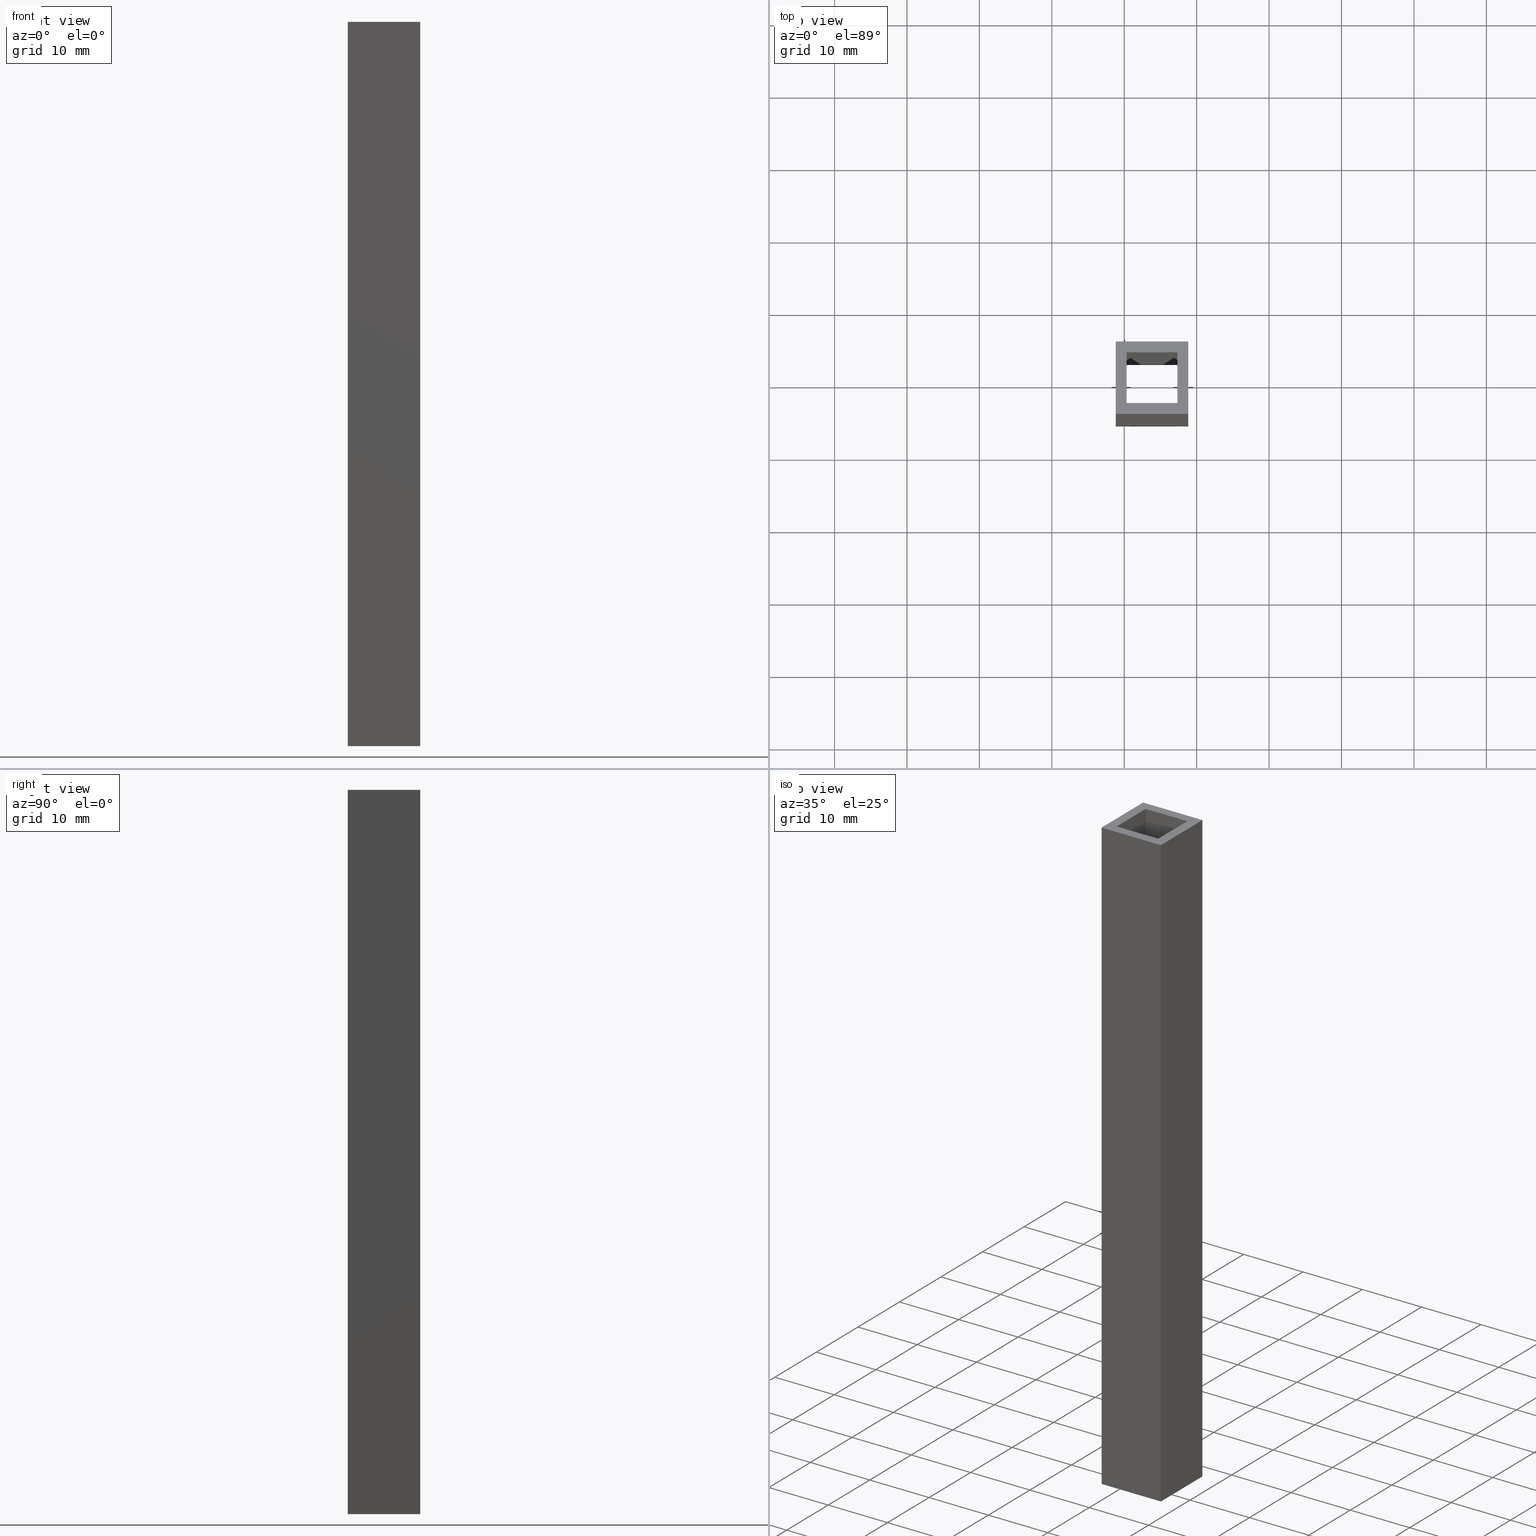
[diagram: canonical four-view strip — front | top / right | iso, engineering-drawing reading convention]
A machine part, canonical four-view strip (front | top / right | iso — engineering-drawing reading convention). The complete STEP part file that produces these views, byte-faithful:
ISO-10303-21;
HEADER;
/* Generated by software containing ST-Developer
 * from STEP Tools, Inc. (www.steptools.com) 
 */

FILE_DESCRIPTION(
/* description */ ('TUBOLARE ALLUM. 10X10X1,5'),
/* implementation_level */ '2;1');

FILE_NAME(
/* name */ 
'Q:\\Catalogo\\2_Accessori Dierre\\Per Download Web e catalogo cartace
o\\CATALOGO ACCESSORI PER RIPARI\\PAGINA 71\\ATUQE0000001.stp',
/* time_stamp */ '2018-11-08T15:53:59+01:00',
/* author */ ('fzagni'),
/* organization */ (''),
/* preprocessor_version */ 'ST-DEVELOPER v16.1',
/* originating_system */ 'Autodesk Inventor 2016',
/* authorisation */ '');

FILE_SCHEMA (('AUTOMOTIVE_DESIGN { 1 0 10303 214 3 1 1 }'));
ENDSEC;

DATA;
#10=MECHANICAL_DESIGN_GEOMETRIC_PRESENTATION_REPRESENTATION('',(#13),#307);
#11=SHAPE_REPRESENTATION_RELATIONSHIP('SRR','None',#316,#12);
#12=ADVANCED_BREP_SHAPE_REPRESENTATION('',(#14),#306);
#13=STYLED_ITEM('',(#325),#14);
#14=MANIFOLD_SOLID_BREP('Solido1',#195);
#15=FACE_BOUND('',#36,.T.);
#16=FACE_BOUND('',#38,.T.);
#17=FACE_OUTER_BOUND('',#27,.T.);
#18=FACE_OUTER_BOUND('',#28,.T.);
#19=FACE_OUTER_BOUND('',#29,.T.);
#20=FACE_OUTER_BOUND('',#30,.T.);
#21=FACE_OUTER_BOUND('',#31,.T.);
#22=FACE_OUTER_BOUND('',#32,.T.);
#23=FACE_OUTER_BOUND('',#33,.T.);
#24=FACE_OUTER_BOUND('',#34,.T.);
#25=FACE_OUTER_BOUND('',#35,.T.);
#26=FACE_OUTER_BOUND('',#37,.T.);
#27=EDGE_LOOP('',(#127,#128,#129,#130));
#28=EDGE_LOOP('',(#131,#132,#133,#134));
#29=EDGE_LOOP('',(#135,#136,#137,#138));
#30=EDGE_LOOP('',(#139,#140,#141,#142));
#31=EDGE_LOOP('',(#143,#144,#145,#146));
#32=EDGE_LOOP('',(#147,#148,#149,#150));
#33=EDGE_LOOP('',(#151,#152,#153,#154));
#34=EDGE_LOOP('',(#155,#156,#157,#158));
#35=EDGE_LOOP('',(#159,#160,#161,#162));
#36=EDGE_LOOP('',(#163,#164,#165,#166));
#37=EDGE_LOOP('',(#167,#168,#169,#170));
#38=EDGE_LOOP('',(#171,#172,#173,#174));
#39=LINE('',#257,#63);
#40=LINE('',#259,#64);
#41=LINE('',#261,#65);
#42=LINE('',#262,#66);
#43=LINE('',#265,#67);
#44=LINE('',#267,#68);
#45=LINE('',#268,#69);
#46=LINE('',#271,#70);
#47=LINE('',#273,#71);
#48=LINE('',#274,#72);
#49=LINE('',#276,#73);
#50=LINE('',#277,#74);
#51=LINE('',#281,#75);
#52=LINE('',#283,#76);
#53=LINE('',#285,#77);
#54=LINE('',#286,#78);
#55=LINE('',#289,#79);
#56=LINE('',#291,#80);
#57=LINE('',#292,#81);
#58=LINE('',#295,#82);
#59=LINE('',#297,#83);
#60=LINE('',#298,#84);
#61=LINE('',#300,#85);
#62=LINE('',#301,#86);
#63=VECTOR('',#211,7.);
#64=VECTOR('',#212,100.);
#65=VECTOR('',#213,7.);
#66=VECTOR('',#214,100.);
#67=VECTOR('',#217,7.);
#68=VECTOR('',#218,100.);
#69=VECTOR('',#219,7.);
#70=VECTOR('',#222,7.);
#71=VECTOR('',#223,100.);
#72=VECTOR('',#224,7.);
#73=VECTOR('',#227,7.);
#74=VECTOR('',#228,7.);
#75=VECTOR('',#231,10.);
#76=VECTOR('',#232,100.);
#77=VECTOR('',#233,10.);
#78=VECTOR('',#234,100.);
#79=VECTOR('',#237,10.);
#80=VECTOR('',#238,10.);
#81=VECTOR('',#239,100.);
#82=VECTOR('',#242,10.);
#83=VECTOR('',#243,10.);
#84=VECTOR('',#244,100.);
#85=VECTOR('',#247,10.);
#86=VECTOR('',#248,10.);
#87=VERTEX_POINT('',#255);
#88=VERTEX_POINT('',#256);
#89=VERTEX_POINT('',#258);
#90=VERTEX_POINT('',#260);
#91=VERTEX_POINT('',#264);
#92=VERTEX_POINT('',#266);
#93=VERTEX_POINT('',#270);
#94=VERTEX_POINT('',#272);
#95=VERTEX_POINT('',#279);
#96=VERTEX_POINT('',#280);
#97=VERTEX_POINT('',#282);
#98=VERTEX_POINT('',#284);
#99=VERTEX_POINT('',#288);
#100=VERTEX_POINT('',#290);
#101=VERTEX_POINT('',#294);
#102=VERTEX_POINT('',#296);
#103=EDGE_CURVE('',#87,#88,#39,.T.);
#104=EDGE_CURVE('',#87,#89,#40,.T.);
#105=EDGE_CURVE('',#90,#89,#41,.T.);
#106=EDGE_CURVE('',#88,#90,#42,.T.);
#107=EDGE_CURVE('',#91,#87,#43,.T.);
#108=EDGE_CURVE('',#91,#92,#44,.T.);
#109=EDGE_CURVE('',#89,#92,#45,.T.);
#110=EDGE_CURVE('',#93,#91,#46,.T.);
#111=EDGE_CURVE('',#93,#94,#47,.T.);
#112=EDGE_CURVE('',#92,#94,#48,.T.);
#113=EDGE_CURVE('',#88,#93,#49,.T.);
#114=EDGE_CURVE('',#94,#90,#50,.T.);
#115=EDGE_CURVE('',#95,#96,#51,.T.);
#116=EDGE_CURVE('',#96,#97,#52,.T.);
#117=EDGE_CURVE('',#98,#97,#53,.T.);
#118=EDGE_CURVE('',#95,#98,#54,.T.);
#119=EDGE_CURVE('',#99,#95,#55,.T.);
#120=EDGE_CURVE('',#100,#98,#56,.T.);
#121=EDGE_CURVE('',#99,#100,#57,.T.);
#122=EDGE_CURVE('',#101,#99,#58,.T.);
#123=EDGE_CURVE('',#102,#100,#59,.T.);
#124=EDGE_CURVE('',#101,#102,#60,.T.);
#125=EDGE_CURVE('',#96,#101,#61,.T.);
#126=EDGE_CURVE('',#97,#102,#62,.T.);
#127=ORIENTED_EDGE('',*,*,#103,.F.);
#128=ORIENTED_EDGE('',*,*,#104,.T.);
#129=ORIENTED_EDGE('',*,*,#105,.F.);
#130=ORIENTED_EDGE('',*,*,#106,.F.);
#131=ORIENTED_EDGE('',*,*,#107,.F.);
#132=ORIENTED_EDGE('',*,*,#108,.T.);
#133=ORIENTED_EDGE('',*,*,#109,.F.);
#134=ORIENTED_EDGE('',*,*,#104,.F.);
#135=ORIENTED_EDGE('',*,*,#110,.F.);
#136=ORIENTED_EDGE('',*,*,#111,.T.);
#137=ORIENTED_EDGE('',*,*,#112,.F.);
#138=ORIENTED_EDGE('',*,*,#108,.F.);
#139=ORIENTED_EDGE('',*,*,#113,.F.);
#140=ORIENTED_EDGE('',*,*,#106,.T.);
#141=ORIENTED_EDGE('',*,*,#114,.F.);
#142=ORIENTED_EDGE('',*,*,#111,.F.);
#143=ORIENTED_EDGE('',*,*,#115,.T.);
#144=ORIENTED_EDGE('',*,*,#116,.T.);
#145=ORIENTED_EDGE('',*,*,#117,.F.);
#146=ORIENTED_EDGE('',*,*,#118,.F.);
#147=ORIENTED_EDGE('',*,*,#119,.T.);
#148=ORIENTED_EDGE('',*,*,#118,.T.);
#149=ORIENTED_EDGE('',*,*,#120,.F.);
#150=ORIENTED_EDGE('',*,*,#121,.F.);
#151=ORIENTED_EDGE('',*,*,#122,.T.);
#152=ORIENTED_EDGE('',*,*,#121,.T.);
#153=ORIENTED_EDGE('',*,*,#123,.F.);
#154=ORIENTED_EDGE('',*,*,#124,.F.);
#155=ORIENTED_EDGE('',*,*,#125,.T.);
#156=ORIENTED_EDGE('',*,*,#124,.T.);
#157=ORIENTED_EDGE('',*,*,#126,.F.);
#158=ORIENTED_EDGE('',*,*,#116,.F.);
#159=ORIENTED_EDGE('',*,*,#126,.T.);
#160=ORIENTED_EDGE('',*,*,#123,.T.);
#161=ORIENTED_EDGE('',*,*,#120,.T.);
#162=ORIENTED_EDGE('',*,*,#117,.T.);
#163=ORIENTED_EDGE('',*,*,#105,.T.);
#164=ORIENTED_EDGE('',*,*,#109,.T.);
#165=ORIENTED_EDGE('',*,*,#112,.T.);
#166=ORIENTED_EDGE('',*,*,#114,.T.);
#167=ORIENTED_EDGE('',*,*,#125,.F.);
#168=ORIENTED_EDGE('',*,*,#115,.F.);
#169=ORIENTED_EDGE('',*,*,#119,.F.);
#170=ORIENTED_EDGE('',*,*,#122,.F.);
#171=ORIENTED_EDGE('',*,*,#103,.T.);
#172=ORIENTED_EDGE('',*,*,#113,.T.);
#173=ORIENTED_EDGE('',*,*,#110,.T.);
#174=ORIENTED_EDGE('',*,*,#107,.T.);
#175=PLANE('',#197);
#176=PLANE('',#198);
#177=PLANE('',#199);
#178=PLANE('',#200);
#179=PLANE('',#201);
#180=PLANE('',#202);
#181=PLANE('',#203);
#182=PLANE('',#204);
#183=PLANE('',#205);
#184=PLANE('',#206);
#185=ADVANCED_FACE('',(#17),#175,.F.);
#186=ADVANCED_FACE('',(#18),#176,.F.);
#187=ADVANCED_FACE('',(#19),#177,.F.);
#188=ADVANCED_FACE('',(#20),#178,.F.);
#189=ADVANCED_FACE('',(#21),#179,.T.);
#190=ADVANCED_FACE('',(#22),#180,.T.);
#191=ADVANCED_FACE('',(#23),#181,.T.);
#192=ADVANCED_FACE('',(#24),#182,.T.);
#193=ADVANCED_FACE('',(#25,#15),#183,.F.);
#194=ADVANCED_FACE('',(#26,#16),#184,.T.);
#195=CLOSED_SHELL('',(#185,#186,#187,#188,#189,#190,#191,#192,#193,#194));
#196=AXIS2_PLACEMENT_3D('placement',#253,#207,#208);
#197=AXIS2_PLACEMENT_3D('',#254,#209,#210);
#198=AXIS2_PLACEMENT_3D('',#263,#215,#216);
#199=AXIS2_PLACEMENT_3D('',#269,#220,#221);
#200=AXIS2_PLACEMENT_3D('',#275,#225,#226);
#201=AXIS2_PLACEMENT_3D('',#278,#229,#230);
#202=AXIS2_PLACEMENT_3D('',#287,#235,#236);
#203=AXIS2_PLACEMENT_3D('',#293,#240,#241);
#204=AXIS2_PLACEMENT_3D('',#299,#245,#246);
#205=AXIS2_PLACEMENT_3D('',#302,#249,#250);
#206=AXIS2_PLACEMENT_3D('',#303,#251,#252);
#207=DIRECTION('axis',(0.,0.,1.));
#208=DIRECTION('refdir',(1.,0.,0.));
#209=DIRECTION('center_axis',(-1.,0.,0.));
#210=DIRECTION('ref_axis',(0.,1.,0.));
#211=DIRECTION('',(0.,1.,0.));
#212=DIRECTION('',(0.,0.,-1.));
#213=DIRECTION('',(0.,-1.,0.));
#214=DIRECTION('',(0.,0.,-1.));
#215=DIRECTION('center_axis',(0.,-1.,0.));
#216=DIRECTION('ref_axis',(-1.,0.,0.));
#217=DIRECTION('',(-1.,0.,0.));
#218=DIRECTION('',(0.,0.,-1.));
#219=DIRECTION('',(1.,0.,0.));
#220=DIRECTION('center_axis',(1.,0.,0.));
#221=DIRECTION('ref_axis',(0.,-1.,0.));
#222=DIRECTION('',(0.,-1.,0.));
#223=DIRECTION('',(0.,0.,-1.));
#224=DIRECTION('',(0.,1.,0.));
#225=DIRECTION('center_axis',(0.,1.,0.));
#226=DIRECTION('ref_axis',(1.,0.,0.));
#227=DIRECTION('',(1.,0.,0.));
#228=DIRECTION('',(-1.,0.,0.));
#229=DIRECTION('center_axis',(-1.,0.,0.));
#230=DIRECTION('ref_axis',(0.,1.,0.));
#231=DIRECTION('',(0.,1.,0.));
#232=DIRECTION('',(0.,0.,-1.));
#233=DIRECTION('',(0.,1.,0.));
#234=DIRECTION('',(0.,0.,-1.));
#235=DIRECTION('center_axis',(0.,-1.,0.));
#236=DIRECTION('ref_axis',(-1.,0.,0.));
#237=DIRECTION('',(-1.,0.,0.));
#238=DIRECTION('',(-1.,0.,0.));
#239=DIRECTION('',(0.,0.,-1.));
#240=DIRECTION('center_axis',(1.,0.,0.));
#241=DIRECTION('ref_axis',(0.,-1.,0.));
#242=DIRECTION('',(0.,-1.,0.));
#243=DIRECTION('',(0.,-1.,0.));
#244=DIRECTION('',(0.,0.,-1.));
#245=DIRECTION('center_axis',(0.,1.,0.));
#246=DIRECTION('ref_axis',(1.,0.,0.));
#247=DIRECTION('',(1.,0.,0.));
#248=DIRECTION('',(1.,0.,0.));
#249=DIRECTION('center_axis',(0.,0.,1.));
#250=DIRECTION('ref_axis',(1.,0.,0.));
#251=DIRECTION('center_axis',(0.,0.,1.));
#252=DIRECTION('ref_axis',(1.,0.,0.));
#253=CARTESIAN_POINT('',(0.,0.,0.));
#254=CARTESIAN_POINT('Origin',(30.3330423541557,26.1378745652133,0.));
#255=CARTESIAN_POINT('',(30.3330423541557,26.1378745652133,0.));
#256=CARTESIAN_POINT('',(30.3330423541557,33.1378745652133,0.));
#257=CARTESIAN_POINT('',(30.3330423541557,27.8878745652133,0.));
#258=CARTESIAN_POINT('',(30.3330423541557,26.1378745652133,-100.));
#259=CARTESIAN_POINT('',(30.3330423541557,26.1378745652133,0.));
#260=CARTESIAN_POINT('',(30.3330423541557,33.1378745652133,-100.));
#261=CARTESIAN_POINT('',(30.3330423541557,27.8878745652133,-100.));
#262=CARTESIAN_POINT('',(30.3330423541557,33.1378745652133,0.));
#263=CARTESIAN_POINT('Origin',(37.3330423541557,26.1378745652133,0.));
#264=CARTESIAN_POINT('',(37.3330423541557,26.1378745652133,0.));
#265=CARTESIAN_POINT('',(35.5830423541557,26.1378745652133,0.));
#266=CARTESIAN_POINT('',(37.3330423541557,26.1378745652133,-100.));
#267=CARTESIAN_POINT('',(37.3330423541557,26.1378745652133,0.));
#268=CARTESIAN_POINT('',(35.5830423541557,26.1378745652133,-100.));
#269=CARTESIAN_POINT('Origin',(37.3330423541557,33.1378745652133,0.));
#270=CARTESIAN_POINT('',(37.3330423541557,33.1378745652133,0.));
#271=CARTESIAN_POINT('',(37.3330423541557,31.3878745652133,0.));
#272=CARTESIAN_POINT('',(37.3330423541557,33.1378745652133,-100.));
#273=CARTESIAN_POINT('',(37.3330423541557,33.1378745652133,0.));
#274=CARTESIAN_POINT('',(37.3330423541557,31.3878745652133,-100.));
#275=CARTESIAN_POINT('Origin',(30.3330423541557,33.1378745652133,0.));
#276=CARTESIAN_POINT('',(32.0830423541557,33.1378745652133,0.));
#277=CARTESIAN_POINT('',(32.0830423541557,33.1378745652133,-100.));
#278=CARTESIAN_POINT('Origin',(28.8330423541557,24.6378745652133,0.));
#279=CARTESIAN_POINT('',(28.8330423541557,24.6378745652133,0.));
#280=CARTESIAN_POINT('',(28.8330423541557,34.6378745652133,0.));
#281=CARTESIAN_POINT('',(28.8330423541557,24.6378745652133,0.));
#282=CARTESIAN_POINT('',(28.8330423541557,34.6378745652133,-100.));
#283=CARTESIAN_POINT('',(28.8330423541557,34.6378745652133,0.));
#284=CARTESIAN_POINT('',(28.8330423541557,24.6378745652133,-100.));
#285=CARTESIAN_POINT('',(28.8330423541557,24.6378745652133,-100.));
#286=CARTESIAN_POINT('',(28.8330423541557,24.6378745652133,0.));
#287=CARTESIAN_POINT('Origin',(38.8330423541557,24.6378745652133,0.));
#288=CARTESIAN_POINT('',(38.8330423541557,24.6378745652133,0.));
#289=CARTESIAN_POINT('',(38.8330423541557,24.6378745652133,0.));
#290=CARTESIAN_POINT('',(38.8330423541557,24.6378745652133,-100.));
#291=CARTESIAN_POINT('',(38.8330423541557,24.6378745652133,-100.));
#292=CARTESIAN_POINT('',(38.8330423541557,24.6378745652133,0.));
#293=CARTESIAN_POINT('Origin',(38.8330423541557,34.6378745652133,0.));
#294=CARTESIAN_POINT('',(38.8330423541557,34.6378745652133,0.));
#295=CARTESIAN_POINT('',(38.8330423541557,34.6378745652133,0.));
#296=CARTESIAN_POINT('',(38.8330423541557,34.6378745652133,-100.));
#297=CARTESIAN_POINT('',(38.8330423541557,34.6378745652133,-100.));
#298=CARTESIAN_POINT('',(38.8330423541557,34.6378745652133,0.));
#299=CARTESIAN_POINT('Origin',(28.8330423541557,34.6378745652133,0.));
#300=CARTESIAN_POINT('',(28.8330423541557,34.6378745652133,0.));
#301=CARTESIAN_POINT('',(28.8330423541557,34.6378745652133,-100.));
#302=CARTESIAN_POINT('Origin',(33.8330423541557,29.6378745652133,-100.));
#303=CARTESIAN_POINT('Origin',(33.8330423541557,29.6378745652133,0.));
#304=UNCERTAINTY_MEASURE_WITH_UNIT(LENGTH_MEASURE(0.01),#308,
'DISTANCE_ACCURACY_VALUE',
'Maximum model space distance between geometric entities at asserted c
onnectivities');
#305=UNCERTAINTY_MEASURE_WITH_UNIT(LENGTH_MEASURE(1.E-6),#308,
'DISTANCE_ACCURACY_VALUE',
'Maximum model space distance between geometric entities at asserted c
onnectivities');
#306=(
GEOMETRIC_REPRESENTATION_CONTEXT(3)
GLOBAL_UNCERTAINTY_ASSIGNED_CONTEXT((#304))
GLOBAL_UNIT_ASSIGNED_CONTEXT((#308,#311,#309))
REPRESENTATION_CONTEXT('','3D')
);
#307=(
GEOMETRIC_REPRESENTATION_CONTEXT(3)
GLOBAL_UNCERTAINTY_ASSIGNED_CONTEXT((#305))
GLOBAL_UNIT_ASSIGNED_CONTEXT((#308,#311,#309))
REPRESENTATION_CONTEXT('','3D')
);
#308=(
LENGTH_UNIT()
NAMED_UNIT(*)
SI_UNIT(.MILLI.,.METRE.)
);
#309=(
NAMED_UNIT(*)
SI_UNIT($,.STERADIAN.)
SOLID_ANGLE_UNIT()
);
#310=DIMENSIONAL_EXPONENTS(0.,0.,0.,0.,0.,0.,0.);
#311=(
CONVERSION_BASED_UNIT('degree',#313)
NAMED_UNIT(#310)
PLANE_ANGLE_UNIT()
);
#312=(
NAMED_UNIT(*)
PLANE_ANGLE_UNIT()
SI_UNIT($,.RADIAN.)
);
#313=PLANE_ANGLE_MEASURE_WITH_UNIT(PLANE_ANGLE_MEASURE(0.01745329252),#312);
#314=SHAPE_DEFINITION_REPRESENTATION(#315,#316);
#315=PRODUCT_DEFINITION_SHAPE('',$,#318);
#316=SHAPE_REPRESENTATION('',(#196),#306);
#317=PRODUCT_DEFINITION_CONTEXT('part definition',#322,'design');
#318=PRODUCT_DEFINITION('F3DTM0003428','F3DTM0003428',#319,#317);
#319=PRODUCT_DEFINITION_FORMATION('',$,#324);
#320=PRODUCT_RELATED_PRODUCT_CATEGORY('F3DTM0003428','F3DTM0003428',(#324));
#321=APPLICATION_PROTOCOL_DEFINITION('international standard',
'automotive_design',2009,#322);
#322=APPLICATION_CONTEXT(
'Core Data for Automotive Mechanical Design Process');
#323=PRODUCT_CONTEXT('part definition',#322,'mechanical');
#324=PRODUCT('F3DTM0003428','F3DTM0003428',$,(#323));
#325=PRESENTATION_STYLE_ASSIGNMENT((#326));
#326=SURFACE_STYLE_USAGE(.BOTH.,#327);
#327=SURFACE_SIDE_STYLE('',(#328));
#328=SURFACE_STYLE_FILL_AREA(#329);
#329=FILL_AREA_STYLE('',(#330));
#330=FILL_AREA_STYLE_COLOUR('',#331);
#331=COLOUR_RGB('',0.956862745098039,0.956862745098039,0.956862745098039);
ENDSEC;
END-ISO-10303-21;
